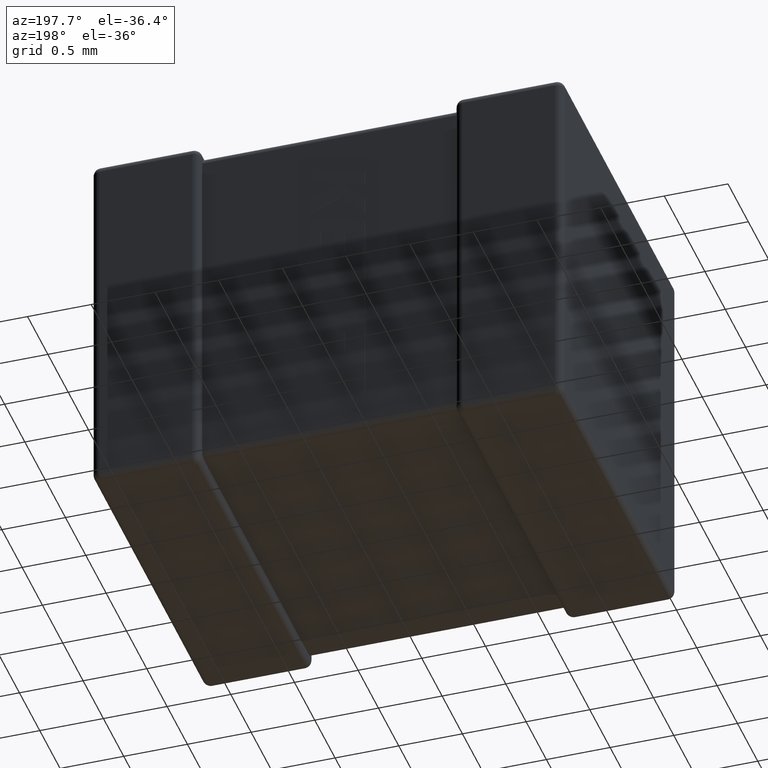
[diagram: clean part render]
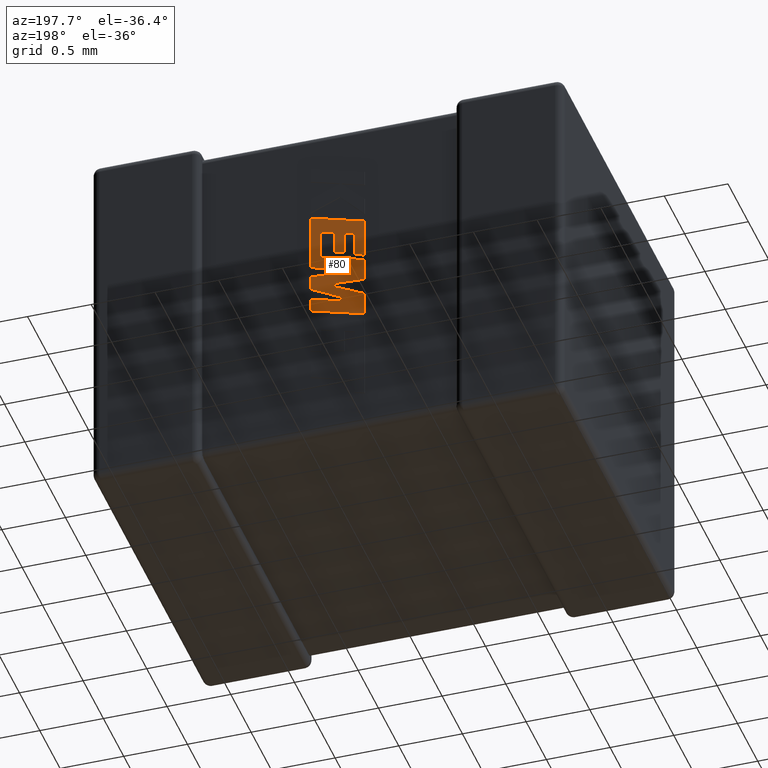
[diagram: same view with one face highlighted and labeled with its STEP entity id]
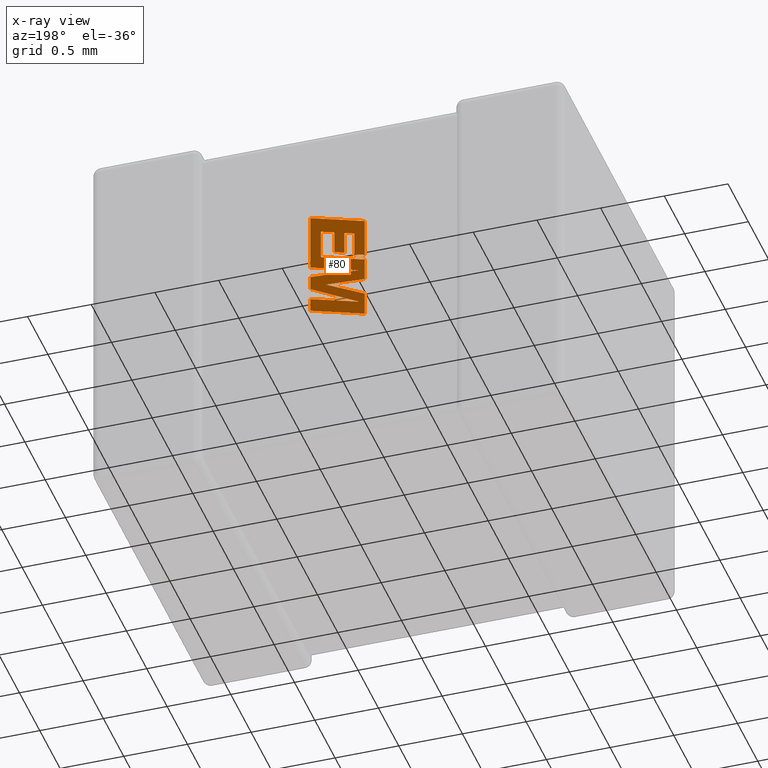
[diagram: x-ray of the same camera — body ghosted, the highlighted face saturated]
A machine part, auxiliary view. The second image highlights one B-rep face of the part: STEP entity #80.
The next image is the same camera in x-ray: the body ghosted, the highlighted face saturated — about 0% of this face is hidden behind the body in this view.
In plain terms, the highlighted planar face has unit normal (0, -1, 0).
Its self-contained STEP definition (entity closure, byte-faithful):
#35 = ORIENTED_EDGE ( 'NONE', *, *, #4316, .T. ) ;
#49 = EDGE_LOOP ( 'NONE', ( #3987, #1433, #743, #2263, #1744, #1192, #4606, #35, #4390, #2593, #3560, #2974, #3184, #3870, #4117, #4384, #2054, #2012, #1004, #3529, #2549, #4485, #3914 ) ) ;
#80 = ADVANCED_FACE ( 'NONE', ( #2910 ), #4677, .F. ) ;
#95 = DIRECTION ( 'NONE',  ( -0.9610674221107078363, 0.000000000000000000, -0.2763139702539095244 ) ) ;
#139 = VERTEX_POINT ( 'NONE', #1295 ) ;
#172 = CARTESIAN_POINT ( 'NONE',  ( 1.652818164483139229, 2.744679999999999787, -1.040631090828483263 ) ) ;
#187 = VECTOR ( 'NONE', #3336, 1000.000000000000114 ) ;
#211 = DIRECTION ( 'NONE',  ( -0.8843386665637649191, 0.000000000000000000, -0.4668459304955137612 ) ) ;
#229 = VERTEX_POINT ( 'NONE', #3716 ) ;
#256 = VECTOR ( 'NONE', #4552, 1000.000000000000000 ) ;
#263 = EDGE_CURVE ( 'NONE', #2362, #3365, #4655, .T. ) ;
#276 = VECTOR ( 'NONE', #2198, 1000.000000000000000 ) ;
#284 = LINE ( 'NONE', #1989, #3338 ) ;
#365 = VERTEX_POINT ( 'NONE', #2123 ) ;
#449 = EDGE_CURVE ( 'NONE', #4300, #3889, #3088, .T. ) ;
#476 = DIRECTION ( 'NONE',  ( 0.9611542233438713501, 0.000000000000000000, 0.2760118818968482768 ) ) ;
#481 = VERTEX_POINT ( 'NONE', #584 ) ;
#515 = EDGE_CURVE ( 'NONE', #1316, #2525, #902, .T. ) ;
#517 = CARTESIAN_POINT ( 'NONE',  ( 1.571668070840859244, 2.744679999999999787, -1.803655342802366057 ) ) ;
#520 = EDGE_CURVE ( 'NONE', #3365, #3847, #2324, .T. ) ;
#533 = VERTEX_POINT ( 'NONE', #552 ) ;
#542 = CARTESIAN_POINT ( 'NONE',  ( 1.618447889521664296, 2.744679999999999787, -1.388550725683712628 ) ) ;
#552 = CARTESIAN_POINT ( 'NONE',  ( 1.571668070840859244, 2.744679999999999787, -1.300444650809979397 ) ) ;
#563 = CARTESIAN_POINT ( 'NONE',  ( 1.876245078725373050, 2.744679999999999787, -1.465608829457816453 ) ) ;
#568 = DIRECTION ( 'NONE',  ( 0.000000000000000000, 0.000000000000000000, -1.000000000000000000 ) ) ;
#584 = CARTESIAN_POINT ( 'NONE',  ( 1.571668070840859244, 2.744679999999999787, -1.616669058274549764 ) ) ;
#730 = LINE ( 'NONE', #2479, #2279 ) ;
#743 = ORIENTED_EDGE ( 'NONE', *, *, #4372, .T. ) ;
#748 = CARTESIAN_POINT ( 'NONE',  ( 1.998000000000007548, 2.744679999999999787, -0.8202796980536152249 ) ) ;
#750 = VERTEX_POINT ( 'NONE', #2022 ) ;
#765 = CARTESIAN_POINT ( 'NONE',  ( 1.810929984927357683, 2.744679999999999787, -0.9950710967194210665 ) ) ;
#769 = CARTESIAN_POINT ( 'NONE',  ( 1.998000000000007548, 2.744679999999999787, -0.8202796980536152249 ) ) ;
#778 = CARTESIAN_POINT ( 'NONE',  ( 1.571668070840859244, 2.744679999999999787, -1.482004336356739893 ) ) ;
#827 = CARTESIAN_POINT ( 'NONE',  ( 1.998000000000007548, 2.744679999999999787, -1.681081769625516698 ) ) ;
#843 = LINE ( 'NONE', #517, #1105 ) ;
#860 = VERTEX_POINT ( 'NONE', #2821 ) ;
#902 = LINE ( 'NONE', #2305, #2632 ) ;
#912 = DIRECTION ( 'NONE',  ( 0.000000000000000000, 0.000000000000000000, 1.000000000000000000 ) ) ;
#951 = CARTESIAN_POINT ( 'NONE',  ( 1.571668070840859244, 2.744679999999999787, -1.257920606915398976 ) ) ;
#995 = EDGE_CURVE ( 'NONE', #3889, #2304, #2244, .T. ) ;
#1004 = ORIENTED_EDGE ( 'NONE', *, *, #3994, .T. ) ;
#1105 = VECTOR ( 'NONE', #912, 1000.000000000000000 ) ;
#1134 = DIRECTION ( 'NONE',  ( 0.000000000000000000, -1.000000000000000000, 0.000000000000000000 ) ) ;
#1156 = DIRECTION ( 'NONE',  ( 0.9610029908221285888, 0.000000000000000000, 0.2765379750249932211 ) ) ;
#1192 = ORIENTED_EDGE ( 'NONE', *, *, #2042, .T. ) ;
#1209 = CARTESIAN_POINT ( 'NONE',  ( 1.652818164483139229, 2.744679999999999787, -1.234872274380831580 ) ) ;
#1215 = LINE ( 'NONE', #827, #1249 ) ;
#1249 = VECTOR ( 'NONE', #95, 1000.000000000000114 ) ;
#1280 = LINE ( 'NONE', #1298, #3340 ) ;
#1295 = CARTESIAN_POINT ( 'NONE',  ( 1.732115835898545564, 2.744679999999999787, -1.200543481232637211 ) ) ;
#1298 = CARTESIAN_POINT ( 'NONE',  ( 1.571668070840859244, 2.744679999999999787, -1.300444650809979397 ) ) ;
#1316 = VERTEX_POINT ( 'NONE', #3051 ) ;
#1319 = LINE ( 'NONE', #2040, #2658 ) ;
#1363 = LINE ( 'NONE', #4227, #2444 ) ;
#1382 = VECTOR ( 'NONE', #2160, 1000.000000000000000 ) ;
#1397 = EDGE_CURVE ( 'NONE', #3983, #2655, #1363, .T. ) ;
#1408 = CARTESIAN_POINT ( 'NONE',  ( 1.616620097122470678, 2.744679999999999787, -1.682264001305505685 ) ) ;
#1421 = DIRECTION ( 'NONE',  ( 0.000000000000000000, 0.000000000000000000, -1.000000000000000000 ) ) ;
#1433 = ORIENTED_EDGE ( 'NONE', *, *, #3475, .T. ) ;
#1543 = VECTOR ( 'NONE', #3440, 1000.000000000000114 ) ;
#1592 = VERTEX_POINT ( 'NONE', #3250 ) ;
#1623 = CARTESIAN_POINT ( 'NONE',  ( 1.652818164483139229, 2.744679999999999787, -1.040631090828483263 ) ) ;
#1663 = DIRECTION ( 'NONE',  ( -0.9611638845408968512, 0.000000000000000000, -0.2759782365590691122 ) ) ;
#1670 = DIRECTION ( 'NONE',  ( -0.9619530280415478085, 0.000000000000000000, -0.2732148821746301914 ) ) ;
#1744 = ORIENTED_EDGE ( 'NONE', *, *, #3421, .T. ) ;
#1769 = CARTESIAN_POINT ( 'NONE',  ( 1.998000000000007548, 2.744679999999999787, -1.681081769625516698 ) ) ;
#1834 = VECTOR ( 'NONE', #1156, 1000.000000000000114 ) ;
#1851 = CARTESIAN_POINT ( 'NONE',  ( 1.571668070840859244, 2.744679999999999787, -0.9429608650261656067 ) ) ;
#1886 = EDGE_CURVE ( 'NONE', #2304, #3983, #3311, .T. ) ;
#1913 = VECTOR ( 'NONE', #2725, 1000.000000000000227 ) ;
#1948 = LINE ( 'NONE', #2577, #187 ) ;
#1966 = LINE ( 'NONE', #4542, #3346 ) ;
#1989 = CARTESIAN_POINT ( 'NONE',  ( 1.998000000000007548, 2.744679999999999787, -1.480932020286315431 ) ) ;
#2012 = ORIENTED_EDGE ( 'NONE', *, *, #3319, .T. ) ;
#2022 = CARTESIAN_POINT ( 'NONE',  ( 1.571668070840859244, 2.744679999999999787, -1.803655342802366057 ) ) ;
#2024 = LINE ( 'NONE', #3110, #3730 ) ;
#2030 = EDGE_CURVE ( 'NONE', #2525, #4061, #3080, .T. ) ;
#2031 = EDGE_CURVE ( 'NONE', #750, #481, #843, .T. ) ;
#2040 = CARTESIAN_POINT ( 'NONE',  ( 1.652818164483139229, 2.744679999999999787, -1.234872274380831580 ) ) ;
#2042 = EDGE_CURVE ( 'NONE', #2223, #229, #3775, .T. ) ;
#2054 = ORIENTED_EDGE ( 'NONE', *, *, #1397, .T. ) ;
#2096 = EDGE_CURVE ( 'NONE', #2842, #139, #1966, .T. ) ;
#2111 = VECTOR ( 'NONE', #476, 999.9999999999998863 ) ;
#2123 = CARTESIAN_POINT ( 'NONE',  ( 1.998000000000007548, 2.744679999999999787, -1.367275740669637640 ) ) ;
#2151 = DIRECTION ( 'NONE',  ( 0.8958676361826827250, 0.000000000000000000, 0.4443210308329467173 ) ) ;
#2160 = DIRECTION ( 'NONE',  ( 0.000000000000000000, 0.000000000000000000, 1.000000000000000000 ) ) ;
#2198 = DIRECTION ( 'NONE',  ( 0.000000000000000000, 0.000000000000000000, -1.000000000000000000 ) ) ;
#2223 = VERTEX_POINT ( 'NONE', #4009 ) ;
#2244 = LINE ( 'NONE', #1851, #1834 ) ;
#2263 = ORIENTED_EDGE ( 'NONE', *, *, #3836, .T. ) ;
#2279 = VECTOR ( 'NONE', #2151, 1000.000000000000114 ) ;
#2304 = VERTEX_POINT ( 'NONE', #748 ) ;
#2305 = CARTESIAN_POINT ( 'NONE',  ( 1.732115835898545564, 2.744679999999999787, -1.017556832160621649 ) ) ;
#2324 = LINE ( 'NONE', #2733, #2938 ) ;
#2329 = VECTOR ( 'NONE', #3424, 1000.000000000000000 ) ;
#2334 = LINE ( 'NONE', #563, #1543 ) ;
#2362 = VERTEX_POINT ( 'NONE', #1408 ) ;
#2366 = DIRECTION ( 'NONE',  ( -0.9615454294334448981, 0.000000000000000000, -0.2746459304917006627 ) ) ;
#2367 = CARTESIAN_POINT ( 'NONE',  ( 1.810929984927357683, 2.744679999999999787, -0.9950710967194210665 ) ) ;
#2381 = CARTESIAN_POINT ( 'NONE',  ( 1.732115835898545564, 2.744679999999999787, -1.200543481232637211 ) ) ;
#2444 = VECTOR ( 'NONE', #1663, 1000.000000000000000 ) ;
#2448 = CARTESIAN_POINT ( 'NONE',  ( 1.618447889521664296, 2.744679999999999787, -1.388550725683712628 ) ) ;
#2479 = CARTESIAN_POINT ( 'NONE',  ( 1.571668070840859244, 2.744679999999999787, -1.616669058274549764 ) ) ;
#2525 = VERTEX_POINT ( 'NONE', #172 ) ;
#2548 = LINE ( 'NONE', #765, #2964 ) ;
#2549 = ORIENTED_EDGE ( 'NONE', *, *, #263, .T. ) ;
#2577 = CARTESIAN_POINT ( 'NONE',  ( 1.916890091863600487, 2.744679999999999787, -0.9648801144511511829 ) ) ;
#2593 = ORIENTED_EDGE ( 'NONE', *, *, #3702, .T. ) ;
#2631 = CARTESIAN_POINT ( 'NONE',  ( 1.810929984927357683, 2.744679999999999787, -1.178031819658119428 ) ) ;
#2632 = VECTOR ( 'NONE', #3839, 1000.000000000000000 ) ;
#2643 = CARTESIAN_POINT ( 'NONE',  ( 1.571668070840859244, 2.744679999999999787, -1.257920606915398976 ) ) ;
#2645 = DIRECTION ( 'NONE',  ( 0.000000000000000000, 0.000000000000000000, 1.000000000000000000 ) ) ;
#2655 = VERTEX_POINT ( 'NONE', #2448 ) ;
#2658 = VECTOR ( 'NONE', #1670, 1000.000000000000114 ) ;
#2698 = DIRECTION ( 'NONE',  ( 0.9610853065513847993, 0.000000000000000000, 0.2762517575166370531 ) ) ;
#2725 = DIRECTION ( 'NONE',  ( 0.9984327301130250243, 0.000000000000000000, 0.05596501978067344035 ) ) ;
#2733 = CARTESIAN_POINT ( 'NONE',  ( 1.998000000000007548, 2.744679999999999787, -1.572744236262341611 ) ) ;
#2782 = EDGE_CURVE ( 'NONE', #3847, #750, #1215, .T. ) ;
#2821 = CARTESIAN_POINT ( 'NONE',  ( 1.571668070840859244, 2.744679999999999787, -1.482004336356739893 ) ) ;
#2842 = VERTEX_POINT ( 'NONE', #2631 ) ;
#2910 = FACE_OUTER_BOUND ( 'NONE', #49, .T. ) ;
#2919 = LINE ( 'NONE', #778, #1382 ) ;
#2938 = VECTOR ( 'NONE', #3068, 1000.000000000000000 ) ;
#2964 = VECTOR ( 'NONE', #4011, 1000.000000000000000 ) ;
#2974 = ORIENTED_EDGE ( 'NONE', *, *, #2030, .T. ) ;
#3051 = CARTESIAN_POINT ( 'NONE',  ( 1.732115835898545564, 2.744679999999999787, -1.017556832160621649 ) ) ;
#3068 = DIRECTION ( 'NONE',  ( 0.000000000000000000, 0.000000000000000000, -1.000000000000000000 ) ) ;
#3075 = VERTEX_POINT ( 'NONE', #4326 ) ;
#3080 = LINE ( 'NONE', #1623, #3127 ) ;
#3088 = LINE ( 'NONE', #951, #2329 ) ;
#3110 = CARTESIAN_POINT ( 'NONE',  ( 1.998000000000007548, 2.744679999999999787, -1.367275740669637640 ) ) ;
#3127 = VECTOR ( 'NONE', #568, 1000.000000000000000 ) ;
#3134 = LINE ( 'NONE', #542, #1913 ) ;
#3184 = ORIENTED_EDGE ( 'NONE', *, *, #3307, .T. ) ;
#3227 = EDGE_CURVE ( 'NONE', #229, #3446, #1948, .T. ) ;
#3250 = CARTESIAN_POINT ( 'NONE',  ( 1.876245078725373050, 2.744679999999999787, -1.465608829457816453 ) ) ;
#3307 = EDGE_CURVE ( 'NONE', #4061, #4300, #1319, .T. ) ;
#3311 = LINE ( 'NONE', #769, #276 ) ;
#3319 = EDGE_CURVE ( 'NONE', #2655, #365, #3134, .T. ) ;
#3336 = DIRECTION ( 'NONE',  ( -0.9617234872620624708, 0.000000000000000000, -0.2740217765953968931 ) ) ;
#3338 = VECTOR ( 'NONE', #211, 1000.000000000000227 ) ;
#3340 = VECTOR ( 'NONE', #2698, 1000.000000000000114 ) ;
#3346 = VECTOR ( 'NONE', #2366, 1000.000000000000227 ) ;
#3365 = VERTEX_POINT ( 'NONE', #3797 ) ;
#3387 = CARTESIAN_POINT ( 'NONE',  ( 1.916890091863600487, 2.744679999999999787, -1.201214968084745482 ) ) ;
#3402 = AXIS2_PLACEMENT_3D ( 'NONE', #4373, #1134, #1421 ) ;
#3421 = EDGE_CURVE ( 'NONE', #533, #2223, #1280, .T. ) ;
#3424 = DIRECTION ( 'NONE',  ( 0.000000000000000000, 0.000000000000000000, 1.000000000000000000 ) ) ;
#3440 = DIRECTION ( 'NONE',  ( -0.9985542843760948362, 0.000000000000000000, -0.05375259206908063886 ) ) ;
#3446 = VERTEX_POINT ( 'NONE', #2367 ) ;
#3475 = EDGE_CURVE ( 'NONE', #481, #1592, #730, .T. ) ;
#3529 = ORIENTED_EDGE ( 'NONE', *, *, #4389, .T. ) ;
#3560 = ORIENTED_EDGE ( 'NONE', *, *, #515, .T. ) ;
#3702 = EDGE_CURVE ( 'NONE', #139, #1316, #3812, .T. ) ;
#3716 = CARTESIAN_POINT ( 'NONE',  ( 1.916890091863600487, 2.744679999999999787, -0.9648801144511511829 ) ) ;
#3730 = VECTOR ( 'NONE', #3920, 1000.000000000000000 ) ;
#3775 = LINE ( 'NONE', #3387, #3829 ) ;
#3797 = CARTESIAN_POINT ( 'NONE',  ( 1.998000000000007548, 2.744679999999999787, -1.572744236262341611 ) ) ;
#3812 = LINE ( 'NONE', #2381, #256 ) ;
#3829 = VECTOR ( 'NONE', #2645, 1000.000000000000000 ) ;
#3836 = EDGE_CURVE ( 'NONE', #860, #533, #2919, .T. ) ;
#3839 = DIRECTION ( 'NONE',  ( -0.9601763114327565019, 0.000000000000000000, -0.2793947940878394043 ) ) ;
#3847 = VERTEX_POINT ( 'NONE', #1769 ) ;
#3870 = ORIENTED_EDGE ( 'NONE', *, *, #449, .T. ) ;
#3889 = VERTEX_POINT ( 'NONE', #4101 ) ;
#3914 = ORIENTED_EDGE ( 'NONE', *, *, #2782, .T. ) ;
#3920 = DIRECTION ( 'NONE',  ( 0.000000000000000000, 0.000000000000000000, -1.000000000000000000 ) ) ;
#3933 = CARTESIAN_POINT ( 'NONE',  ( 1.616620097122470678, 2.744679999999999787, -1.682264001305505685 ) ) ;
#3983 = VERTEX_POINT ( 'NONE', #4573 ) ;
#3987 = ORIENTED_EDGE ( 'NONE', *, *, #2031, .T. ) ;
#3994 = EDGE_CURVE ( 'NONE', #365, #3075, #2024, .T. ) ;
#4009 = CARTESIAN_POINT ( 'NONE',  ( 1.916890091863600487, 2.744679999999999787, -1.201214968084745482 ) ) ;
#4011 = DIRECTION ( 'NONE',  ( 0.000000000000000000, 0.000000000000000000, -1.000000000000000000 ) ) ;
#4061 = VERTEX_POINT ( 'NONE', #1209 ) ;
#4101 = CARTESIAN_POINT ( 'NONE',  ( 1.571668070840859244, 2.744679999999999787, -0.9429608650261656067 ) ) ;
#4117 = ORIENTED_EDGE ( 'NONE', *, *, #995, .T. ) ;
#4227 = CARTESIAN_POINT ( 'NONE',  ( 1.998000000000007548, 2.744679999999999787, -1.279570224213747887 ) ) ;
#4300 = VERTEX_POINT ( 'NONE', #2643 ) ;
#4316 = EDGE_CURVE ( 'NONE', #3446, #2842, #2548, .T. ) ;
#4326 = CARTESIAN_POINT ( 'NONE',  ( 1.998000000000007548, 2.744679999999999787, -1.480932020286315431 ) ) ;
#4372 = EDGE_CURVE ( 'NONE', #1592, #860, #2334, .T. ) ;
#4373 = CARTESIAN_POINT ( 'NONE',  ( -0.8630697648278080614, 2.744679999999999787, 0.006561855759162677285 ) ) ;
#4384 = ORIENTED_EDGE ( 'NONE', *, *, #1886, .T. ) ;
#4389 = EDGE_CURVE ( 'NONE', #3075, #2362, #284, .T. ) ;
#4390 = ORIENTED_EDGE ( 'NONE', *, *, #2096, .T. ) ;
#4485 = ORIENTED_EDGE ( 'NONE', *, *, #520, .T. ) ;
#4542 = CARTESIAN_POINT ( 'NONE',  ( 1.810929984927357683, 2.744679999999999787, -1.178031819658119428 ) ) ;
#4552 = DIRECTION ( 'NONE',  ( 0.000000000000000000, 0.000000000000000000, 1.000000000000000000 ) ) ;
#4573 = CARTESIAN_POINT ( 'NONE',  ( 1.998000000000007548, 2.744679999999999787, -1.279570224213747887 ) ) ;
#4606 = ORIENTED_EDGE ( 'NONE', *, *, #3227, .T. ) ;
#4655 = LINE ( 'NONE', #3933, #2111 ) ;
#4677 = PLANE ( 'NONE',  #3402 ) ;